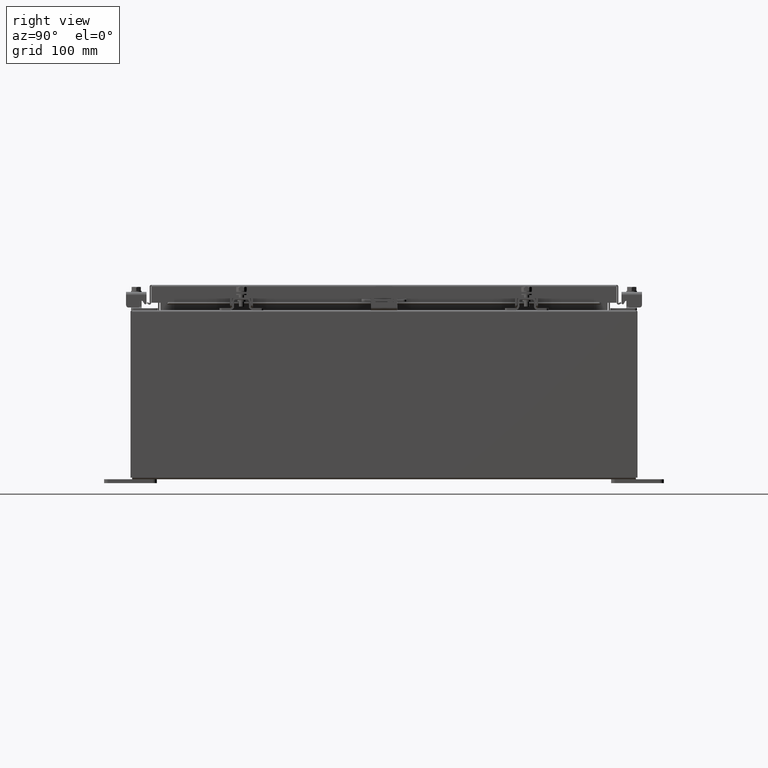
[diagram: clean part render]
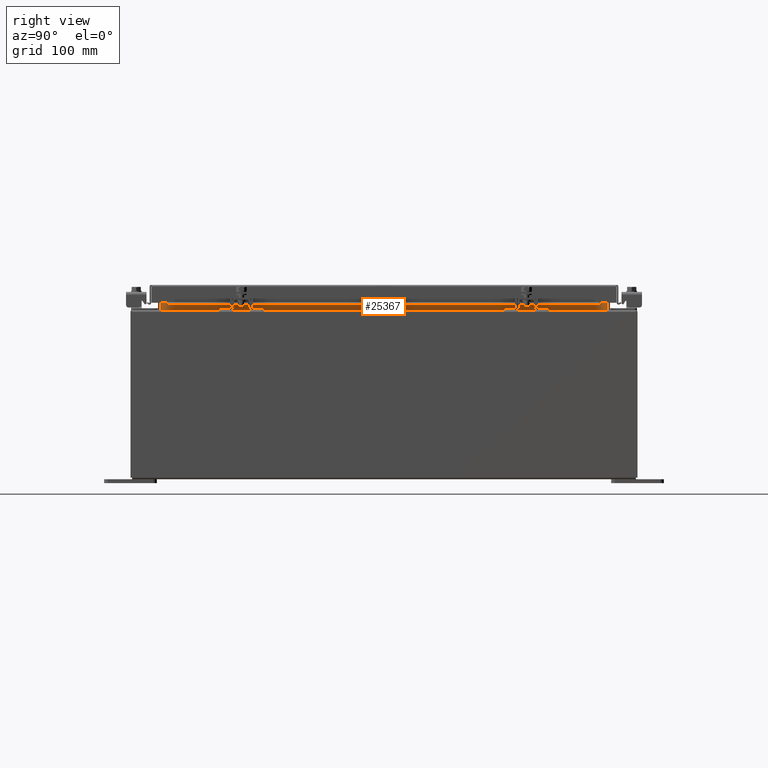
[diagram: same view with one face highlighted and labeled with its STEP entity id]
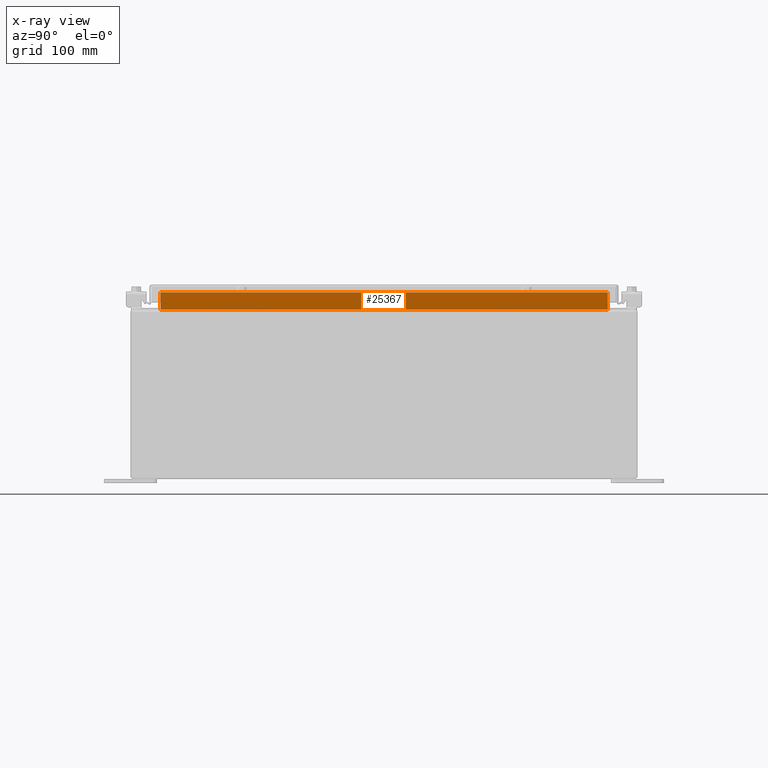
[diagram: x-ray of the same camera — body ghosted, the highlighted face saturated]
A machine part, right view. The second image highlights one B-rep face of the part: STEP entity #25367.
The next image is the same camera in x-ray: the body ghosted, the highlighted face saturated — about 0% of this face is hidden behind the body in this view.
In plain terms, the highlighted planar face has unit normal (1, 0, -0).
Its self-contained STEP definition (entity closure, byte-faithful):
#470 = CARTESIAN_POINT ( 'NONE',  ( 8.699700000000028400, -10.59374999999999800, 7.938300000000009700 ) ) ;
#551 = CARTESIAN_POINT ( 'NONE',  ( 8.699700000000028400, 10.59374999999999600, 7.925300000000007100 ) ) ;
#926 = EDGE_CURVE ( 'NONE', #26564, #6512, #17448, .T. ) ;
#4262 = CARTESIAN_POINT ( 'NONE',  ( 8.699700000000033700, -10.59375000000000000, 8.762900000000007200 ) ) ;
#4587 = CARTESIAN_POINT ( 'NONE',  ( 8.699700000000033700, 10.59374999999999600, 8.762900000000007200 ) ) ;
#5423 = FACE_OUTER_BOUND ( 'NONE', #14639, .T. ) ;
#6113 = ORIENTED_EDGE ( 'NONE', *, *, #21529, .F. ) ;
#6512 = VERTEX_POINT ( 'NONE', #10676 ) ;
#6823 = ORIENTED_EDGE ( 'NONE', *, *, #926, .F. ) ;
#8295 = PLANE ( 'NONE',  #10943 ) ;
#8611 = LINE ( 'NONE', #4262, #9413 ) ;
#9413 = VECTOR ( 'NONE', #19457, 39.37007874015748100 ) ;
#10293 = ORIENTED_EDGE ( 'NONE', *, *, #28129, .F. ) ;
#10627 = CARTESIAN_POINT ( 'NONE',  ( 8.699700000000030200, -10.59375000000000000, 8.850600000000007100 ) ) ;
#10676 = CARTESIAN_POINT ( 'NONE',  ( 8.699700000000030200, -10.59375000000000000, 8.762900000000007200 ) ) ;
#10943 = AXIS2_PLACEMENT_3D ( 'NONE', #23506, #28661, #13398 ) ;
#12113 = CARTESIAN_POINT ( 'NONE',  ( 8.699700000000028400, 10.59374999999999600, 7.938300000000009700 ) ) ;
#13398 = DIRECTION ( 'NONE',  ( -2.361913319930196000E-015, 0.0000000000000000000, -1.000000000000000000 ) ) ;
#14639 = EDGE_LOOP ( 'NONE', ( #10293, #26115, #6823, #6113 ) ) ;
#15211 = VECTOR ( 'NONE', #28003, 39.37007874015748100 ) ;
#17448 = LINE ( 'NONE', #10627, #30993 ) ;
#19457 = DIRECTION ( 'NONE',  ( 0.0000000000000000000, 1.000000000000000000, 0.0000000000000000000 ) ) ;
#21529 = EDGE_CURVE ( 'NONE', #31037, #26564, #29538, .T. ) ;
#23391 = DIRECTION ( 'NONE',  ( -2.361913319930196000E-015, -0.0000000000000000000, -1.000000000000000000 ) ) ;
#23506 = CARTESIAN_POINT ( 'NONE',  ( 8.699700000000010600, 0.0000000000000000000, -2.054008210236317900E-014 ) ) ;
#23649 = VECTOR ( 'NONE', #23391, 39.37007874015748100 ) ;
#25367 = ADVANCED_FACE ( 'NONE', ( #5423 ), #8295, .T. ) ;
#26115 = ORIENTED_EDGE ( 'NONE', *, *, #27224, .F. ) ;
#26564 = VERTEX_POINT ( 'NONE', #470 ) ;
#27224 = EDGE_CURVE ( 'NONE', #6512, #31045, #8611, .T. ) ;
#27884 = CARTESIAN_POINT ( 'NONE',  ( 8.699700000000028400, 10.59374999999999600, 7.938300000000007900 ) ) ;
#28003 = DIRECTION ( 'NONE',  ( 5.157471138481205900E-017, -1.000000000000000000, 1.547241341544361900E-016 ) ) ;
#28129 = EDGE_CURVE ( 'NONE', #31045, #31037, #30441, .T. ) ;
#28443 = DIRECTION ( 'NONE',  ( 2.361913319930198800E-015, -0.0000000000000000000, 1.000000000000000000 ) ) ;
#28661 = DIRECTION ( 'NONE',  ( 1.000000000000000000, 0.0000000000000000000, -2.361913319930196000E-015 ) ) ;
#29538 = LINE ( 'NONE', #27884, #15211 ) ;
#30441 = LINE ( 'NONE', #551, #23649 ) ;
#30993 = VECTOR ( 'NONE', #28443, 39.37007874015748100 ) ;
#31037 = VERTEX_POINT ( 'NONE', #12113 ) ;
#31045 = VERTEX_POINT ( 'NONE', #4587 ) ;